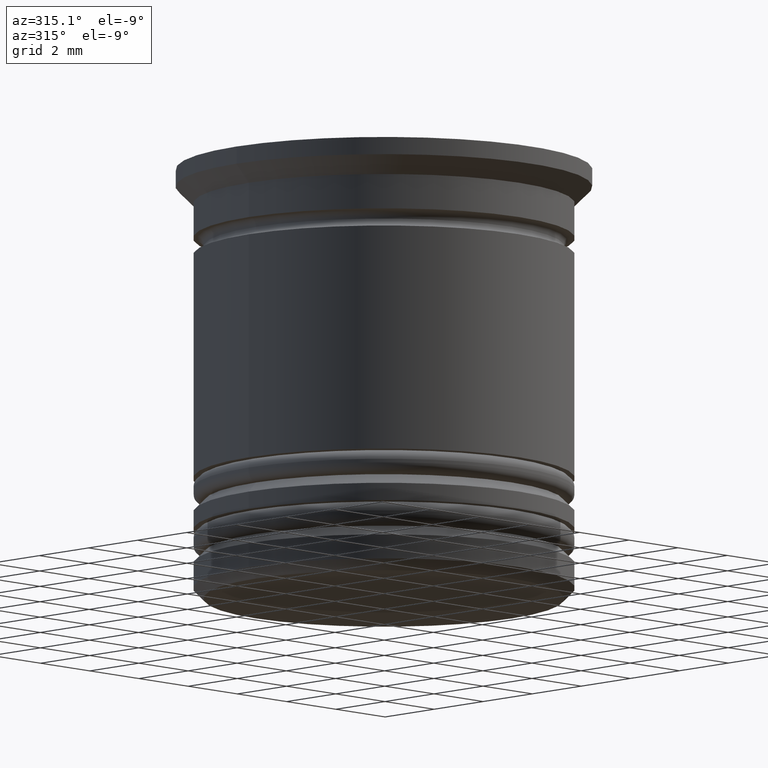
[diagram: clean part render]
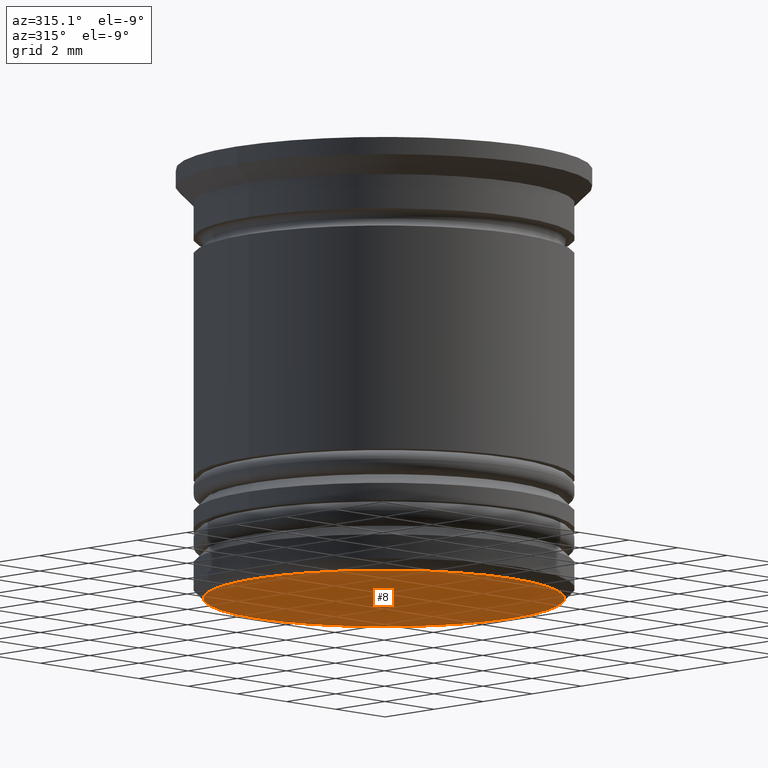
[diagram: same view with one face highlighted and labeled with its STEP entity id]
A machine part, auxiliary view. The second image highlights one B-rep face of the part: STEP entity #8.
In plain terms, the highlighted planar face has unit normal (0, 0, -1).
Its self-contained STEP definition (entity closure, byte-faithful):
#8 = ADVANCED_FACE ( 'NONE', ( #1509 ), #267, .T. ) ;
#50 = CIRCLE ( 'NONE', #879, 5.199999999999996625 ) ;
#76 = DIRECTION ( 'NONE',  ( -1.000000000000000000, 0.000000000000000000, 0.000000000000000000 ) ) ;
#133 = DIRECTION ( 'NONE',  ( 0.000000000000000000, 0.000000000000000000, -1.000000000000000000 ) ) ;
#136 = DIRECTION ( 'NONE',  ( 0.000000000000000000, 0.000000000000000000, -1.000000000000000000 ) ) ;
#137 = VERTEX_POINT ( 'NONE', #753 ) ;
#226 = CARTESIAN_POINT ( 'NONE',  ( 0.000000000000000000, 0.000000000000000000, -12.50000000000000000 ) ) ;
#256 = ORIENTED_EDGE ( 'NONE', *, *, #1401, .T. ) ;
#267 = PLANE ( 'NONE',  #1367 ) ;
#338 = CARTESIAN_POINT ( 'NONE',  ( 5.199999999999996625, 0.000000000000000000, -12.50000000000000000 ) ) ;
#409 = CARTESIAN_POINT ( 'NONE',  ( 0.000000000000000000, 5.500000000000000888, -12.50000000000000000 ) ) ;
#424 = DIRECTION ( 'NONE',  ( -1.000000000000000000, 0.000000000000000000, 0.000000000000000000 ) ) ;
#491 = ORIENTED_EDGE ( 'NONE', *, *, #1585, .T. ) ;
#753 = CARTESIAN_POINT ( 'NONE',  ( -5.199999999999996625, 6.551860375438336737E-16, -12.50000000000000000 ) ) ;
#879 = AXIS2_PLACEMENT_3D ( 'NONE', #226, #1279, #76 ) ;
#1168 = CARTESIAN_POINT ( 'NONE',  ( 0.000000000000000000, 0.000000000000000000, -12.50000000000000000 ) ) ;
#1279 = DIRECTION ( 'NONE',  ( 0.000000000000000000, 0.000000000000000000, -1.000000000000000000 ) ) ;
#1367 = AXIS2_PLACEMENT_3D ( 'NONE', #409, #136, #1515 ) ;
#1401 = EDGE_CURVE ( 'NONE', #137, #1842, #50, .T. ) ;
#1451 = EDGE_LOOP ( 'NONE', ( #491, #256 ) ) ;
#1509 = FACE_OUTER_BOUND ( 'NONE', #1451, .T. ) ;
#1515 = DIRECTION ( 'NONE',  ( -1.000000000000000000, 0.000000000000000000, -0.000000000000000000 ) ) ;
#1562 = CIRCLE ( 'NONE', #1923, 5.199999999999996625 ) ;
#1585 = EDGE_CURVE ( 'NONE', #1842, #137, #1562, .T. ) ;
#1842 = VERTEX_POINT ( 'NONE', #338 ) ;
#1923 = AXIS2_PLACEMENT_3D ( 'NONE', #1168, #133, #424 ) ;